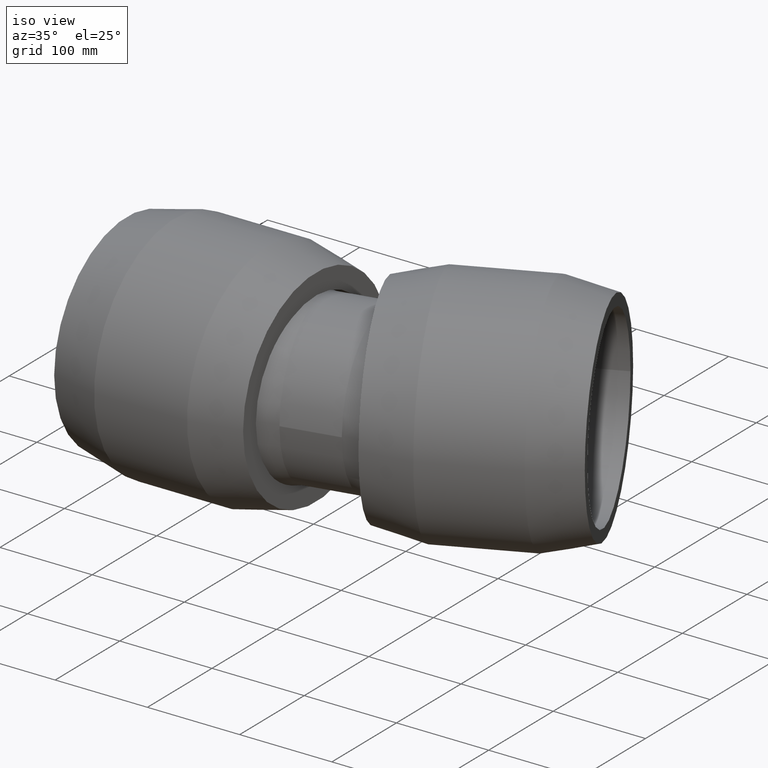
[diagram: clean part render]
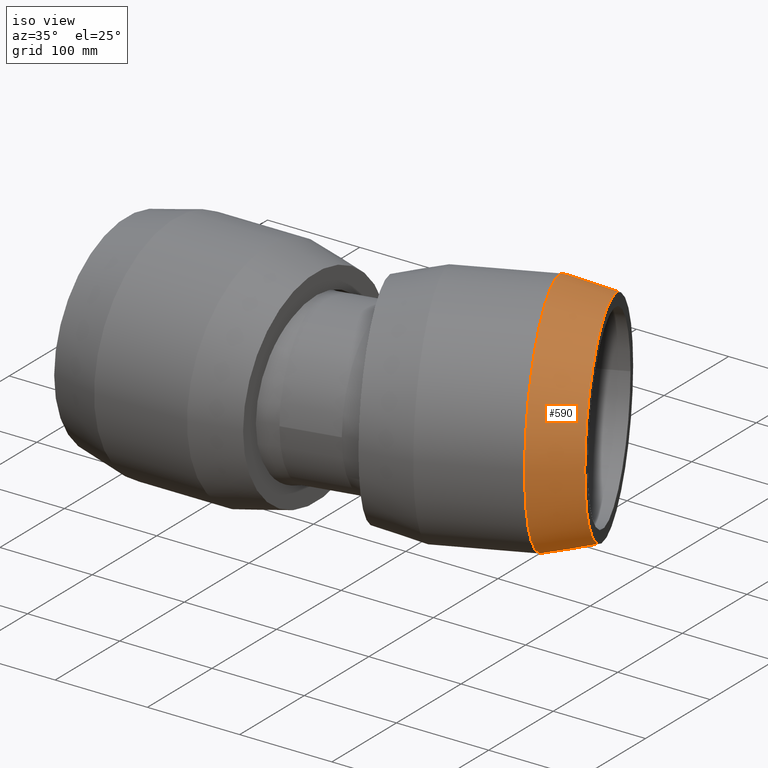
[diagram: same view with one face highlighted and labeled with its STEP entity id]
A machine part, iso view. The second image highlights one B-rep face of the part: STEP entity #590.
In plain terms, the highlighted conical surface has half-angle 13.517 deg.
Its self-contained STEP definition (entity closure, byte-faithful):
#24=CONICAL_SURFACE('',#690,118.75,13.5165681087913);
#111=FACE_BOUND('',#261,.T.);
#112=FACE_BOUND('',#262,.T.);
#162=FACE_OUTER_BOUND('',#260,.T.);
#260=EDGE_LOOP('',(#536));
#261=EDGE_LOOP('',(#537));
#262=EDGE_LOOP('',(#538));
#270=B_SPLINE_CURVE_WITH_KNOTS('',3,(#1315,#1316,#1317,#1318,#1319,#1320,
#1321,#1322,#1323,#1324,#1325,#1326,#1327,#1328,#1329,#1330,#1331,#1332,
#1333,#1334,#1335,#1336,#1337,#1338,#1339,#1340,#1341,#1342,#1343,#1344,
#1345,#1346,#1347,#1348),.UNSPECIFIED.,.T.,.F.,(4,2,2,2,2,2,2,2,2,2,2,2,
2,2,2,2,4),(0.,0.310225242960109,0.620450485920219,0.926113849673622,1.23177721342703,
1.53744057718043,1.84310394093383,2.15332918389394,2.46355442685405,2.78583165074138,
3.10810887462871,3.42020566209366,3.73230244955861,4.04439923702356,4.35649602448851,
4.67877324837584,5.00105047226316),.UNSPECIFIED.);
#311=CIRCLE('',#674,125.);
#318=CIRCLE('',#689,112.5);
#361=VERTEX_POINT('',#1314);
#363=VERTEX_POINT('',#1353);
#370=VERTEX_POINT('',#1375);
#417=EDGE_CURVE('',#361,#361,#270,.T.);
#419=EDGE_CURVE('',#363,#363,#311,.T.);
#426=EDGE_CURVE('',#370,#370,#318,.T.);
#536=ORIENTED_EDGE('',*,*,#419,.T.);
#537=ORIENTED_EDGE('',*,*,#417,.F.);
#538=ORIENTED_EDGE('',*,*,#426,.F.);
#590=ADVANCED_FACE('',(#162,#111,#112),#24,.T.);
#674=AXIS2_PLACEMENT_3D('',#1354,#855,#856);
#689=AXIS2_PLACEMENT_3D('',#1376,#885,#886);
#690=AXIS2_PLACEMENT_3D('',#1377,#887,#888);
#855=DIRECTION('center_axis',(0.913545457642601,0.406736643075801,1.19788532833232E-16));
#856=DIRECTION('ref_axis',(1.19788532833232E-16,2.54618386665284E-17,-1.));
#885=DIRECTION('center_axis',(0.913545457642601,0.406736643075801,1.19788532833232E-16));
#886=DIRECTION('ref_axis',(1.19788532833232E-16,2.54618386665284E-17,-1.));
#887=DIRECTION('center_axis',(-0.913545457642601,-0.406736643075801,-1.19788532833232E-16));
#888=DIRECTION('ref_axis',(-0.406736643075801,0.913545457642601,-2.54618386665283E-17));
#1314=CARTESIAN_POINT('',(286.61313877384,195.462559172103,8.18858681080874));
#1315=CARTESIAN_POINT('Ctrl Pts',(286.61313877384,195.462559172103,8.18858681080875));
#1316=CARTESIAN_POINT('Ctrl Pts',(287.629721904567,195.651250228332,8.17172149615796));
#1317=CARTESIAN_POINT('Ctrl Pts',(288.711269335264,195.866232519274,7.95587653546634));
#1318=CARTESIAN_POINT('Ctrl Pts',(290.695101553099,196.286735689041,7.10575158283917));
#1319=CARTESIAN_POINT('Ctrl Pts',(291.597420373454,196.491551883743,6.47120261492378));
#1320=CARTESIAN_POINT('Ctrl Pts',(293.008252516434,196.823423254679,5.01721942285576));
#1321=CARTESIAN_POINT('Ctrl Pts',(293.615085895326,196.973258462824,4.10468940792674));
#1322=CARTESIAN_POINT('Ctrl Pts',(294.419153471112,197.175106683959,2.10550249624106));
#1323=CARTESIAN_POINT('Ctrl Pts',(294.616654403559,197.22637608596,1.01887787917804));
#1324=CARTESIAN_POINT('Ctrl Pts',(294.616654403559,197.22637608596,-1.01887787917799));
#1325=CARTESIAN_POINT('Ctrl Pts',(294.419153471112,197.175106683959,-2.10550249624101));
#1326=CARTESIAN_POINT('Ctrl Pts',(293.615085895326,196.973258462824,-4.10468940792669));
#1327=CARTESIAN_POINT('Ctrl Pts',(293.008252516434,196.823423254679,-5.01721942285571));
#1328=CARTESIAN_POINT('Ctrl Pts',(291.597420373454,196.491551883743,-6.47120261492373));
#1329=CARTESIAN_POINT('Ctrl Pts',(290.695101553099,196.286735689041,-7.10575158283913));
#1330=CARTESIAN_POINT('Ctrl Pts',(288.711269335264,195.866232519274,-7.95587653546629));
#1331=CARTESIAN_POINT('Ctrl Pts',(287.629721904567,195.651250228332,-8.17172149615791));
#1332=CARTESIAN_POINT('Ctrl Pts',(285.557062272471,195.266537632419,-8.20610732826814));
#1333=CARTESIAN_POINT('Ctrl Pts',(284.424046728429,195.071550371788,-8.01197575436535));
#1334=CARTESIAN_POINT('Ctrl Pts',(282.324210291546,194.736859872555,-7.1827513175258));
#1335=CARTESIAN_POINT('Ctrl Pts',(281.35750467032,194.596397284008,-6.54767321923857));
#1336=CARTESIAN_POINT('Ctrl Pts',(279.84542833833,194.387821945148,-5.08426274001839));
#1337=CARTESIAN_POINT('Ctrl Pts',(279.190802101432,194.304127383269,-4.16737540869878));
#1338=CARTESIAN_POINT('Ctrl Pts',(278.317164150864,194.195501318894,-2.14552142579008));
#1339=CARTESIAN_POINT('Ctrl Pts',(278.098772258317,194.169907837521,-1.04032262488314));
#1340=CARTESIAN_POINT('Ctrl Pts',(278.098772258317,194.169907837521,1.04032262488318));
#1341=CARTESIAN_POINT('Ctrl Pts',(278.317164150864,194.195501318894,2.14552142579013));
#1342=CARTESIAN_POINT('Ctrl Pts',(279.190802101432,194.304127383269,4.16737540869882));
#1343=CARTESIAN_POINT('Ctrl Pts',(279.84542833833,194.387821945148,5.08426274001843));
#1344=CARTESIAN_POINT('Ctrl Pts',(281.35750467032,194.596397284008,6.54767321923862));
#1345=CARTESIAN_POINT('Ctrl Pts',(282.324210291546,194.736859872555,7.18275131752584));
#1346=CARTESIAN_POINT('Ctrl Pts',(284.424046728429,195.071550371788,8.0119757543654));
#1347=CARTESIAN_POINT('Ctrl Pts',(285.557062272471,195.266537632419,8.20610732826819));
#1348=CARTESIAN_POINT('Ctrl Pts',(286.61313877384,195.462559172103,8.18858681080874));
#1353=CARTESIAN_POINT('',(254.307255047791,189.767526448869,1.90747676675437E-14));
#1354=CARTESIAN_POINT('Origin',(305.149335432266,75.5743442435439,2.22574975008598E-14));
#1375=CARTESIAN_POINT('',(306.895826883653,199.498513668278,2.56220443582034E-14));
#1376=CARTESIAN_POINT('Origin',(352.653699229681,96.7246496834856,2.84865012081878E-14));
#1377=CARTESIAN_POINT('Origin',(328.901517330973,86.1494969635147,2.53719993545238E-14));